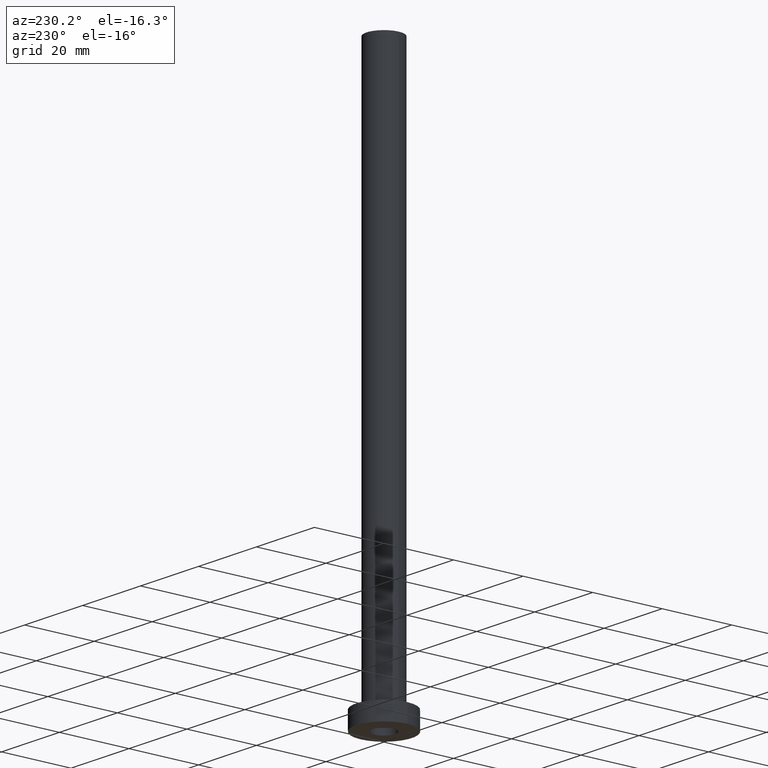
[diagram: clean part render]
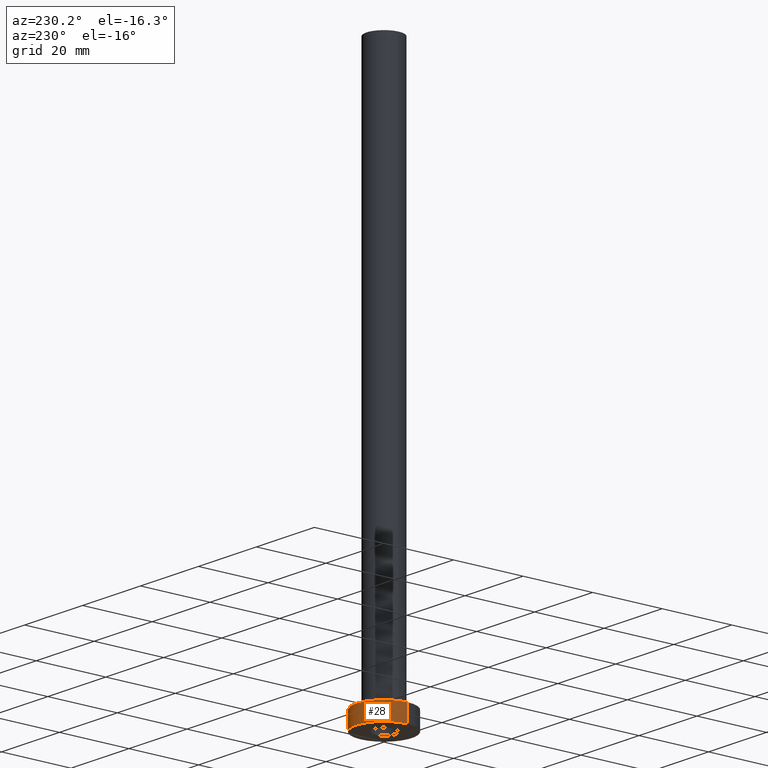
[diagram: same view with one face highlighted and labeled with its STEP entity id]
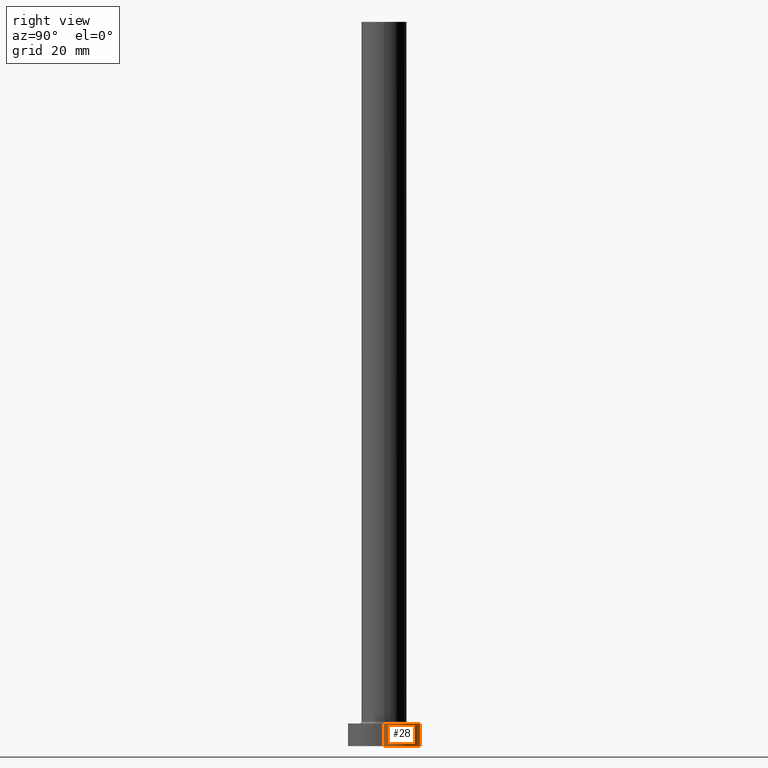
[diagram: same view with one face highlighted and labeled with its STEP entity id]
A machine part, auxiliary view. The second image highlights one B-rep face of the part: STEP entity #28.
A second angle (right view) of the same face is appended — the face is thin or edge-on in the first view.
In plain terms, the highlighted cylindrical surface (edge-blend (fillet) strip) has radius 8 mm, axis along (-0, -0, -1).
Its self-contained STEP definition (entity closure, byte-faithful):
#16 = CARTESIAN_POINT ( 'NONE',  ( 8.000000000000000000, 9.797174393178825657E-16, 0.000000000000000000 ) ) ;
#17 = DIRECTION ( 'NONE',  ( -0.000000000000000000, -0.000000000000000000, -1.000000000000000000 ) ) ;
#19 = VERTEX_POINT ( 'NONE', #16 ) ;
#28 = ADVANCED_FACE ( 'NONE', ( #306 ), #380, .T. ) ;
#32 = DIRECTION ( 'NONE',  ( -0.000000000000000000, -0.000000000000000000, -1.000000000000000000 ) ) ;
#42 = ORIENTED_EDGE ( 'NONE', *, *, #312, .F. ) ;
#66 = CARTESIAN_POINT ( 'NONE',  ( 0.000000000000000000, 0.000000000000000000, 5.000000000000000000 ) ) ;
#95 = CARTESIAN_POINT ( 'NONE',  ( 0.000000000000000000, 0.000000000000000000, 0.000000000000000000 ) ) ;
#99 = DIRECTION ( 'NONE',  ( 0.000000000000000000, 0.000000000000000000, 1.000000000000000000 ) ) ;
#118 = AXIS2_PLACEMENT_3D ( 'NONE', #95, #99, #348 ) ;
#155 = CIRCLE ( 'NONE', #118, 8.000000000000000000 ) ;
#161 = VERTEX_POINT ( 'NONE', #300 ) ;
#195 = VERTEX_POINT ( 'NONE', #461 ) ;
#207 = CARTESIAN_POINT ( 'NONE',  ( 0.000000000000000000, 0.000000000000000000, 5.000000000000000000 ) ) ;
#209 = DIRECTION ( 'NONE',  ( -0.000000000000000000, -0.000000000000000000, -1.000000000000000000 ) ) ;
#249 = AXIS2_PLACEMENT_3D ( 'NONE', #207, #283, #414 ) ;
#258 = VECTOR ( 'NONE', #17, 1000.000000000000000 ) ;
#261 = AXIS2_PLACEMENT_3D ( 'NONE', #66, #209, #322 ) ;
#267 = LINE ( 'NONE', #338, #258 ) ;
#280 = LINE ( 'NONE', #313, #328 ) ;
#283 = DIRECTION ( 'NONE',  ( 0.000000000000000000, 0.000000000000000000, 1.000000000000000000 ) ) ;
#300 = CARTESIAN_POINT ( 'NONE',  ( -8.000000000000000000, 0.000000000000000000, 0.000000000000000000 ) ) ;
#306 = FACE_OUTER_BOUND ( 'NONE', #399, .T. ) ;
#309 = VERTEX_POINT ( 'NONE', #437 ) ;
#312 = EDGE_CURVE ( 'NONE', #309, #161, #267, .T. ) ;
#313 = CARTESIAN_POINT ( 'NONE',  ( 8.000000000000000000, 9.797174393178825657E-16, 5.000000000000000000 ) ) ;
#318 = EDGE_CURVE ( 'NONE', #195, #309, #442, .T. ) ;
#322 = DIRECTION ( 'NONE',  ( -1.000000000000000000, 0.000000000000000000, 0.000000000000000000 ) ) ;
#328 = VECTOR ( 'NONE', #32, 1000.000000000000000 ) ;
#329 = ORIENTED_EDGE ( 'NONE', *, *, #330, .T. ) ;
#330 = EDGE_CURVE ( 'NONE', #195, #19, #280, .T. ) ;
#335 = EDGE_CURVE ( 'NONE', #19, #161, #155, .T. ) ;
#338 = CARTESIAN_POINT ( 'NONE',  ( -8.000000000000000000, 0.000000000000000000, 5.000000000000000000 ) ) ;
#348 = DIRECTION ( 'NONE',  ( 1.000000000000000000, 0.000000000000000000, 0.000000000000000000 ) ) ;
#380 = CYLINDRICAL_SURFACE ( 'NONE', #261, 8.000000000000000000 ) ;
#399 = EDGE_LOOP ( 'NONE', ( #402, #329, #413, #42 ) ) ;
#402 = ORIENTED_EDGE ( 'NONE', *, *, #318, .F. ) ;
#413 = ORIENTED_EDGE ( 'NONE', *, *, #335, .T. ) ;
#414 = DIRECTION ( 'NONE',  ( 1.000000000000000000, 0.000000000000000000, 0.000000000000000000 ) ) ;
#437 = CARTESIAN_POINT ( 'NONE',  ( -8.000000000000000000, 0.000000000000000000, 5.000000000000000000 ) ) ;
#442 = CIRCLE ( 'NONE', #249, 8.000000000000000000 ) ;
#461 = CARTESIAN_POINT ( 'NONE',  ( 8.000000000000000000, 9.797174393178825657E-16, 5.000000000000000000 ) ) ;